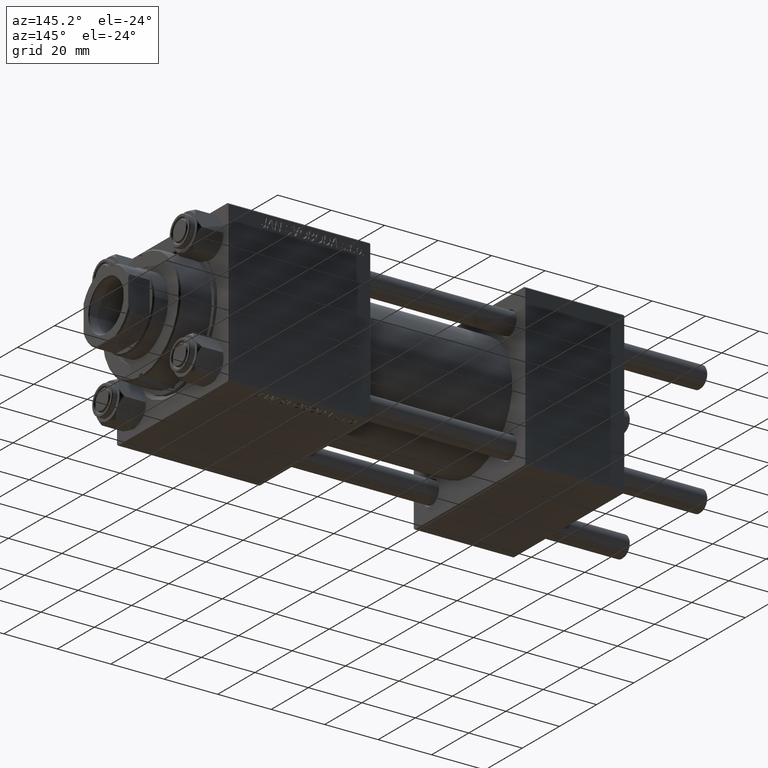
[diagram: clean part render]
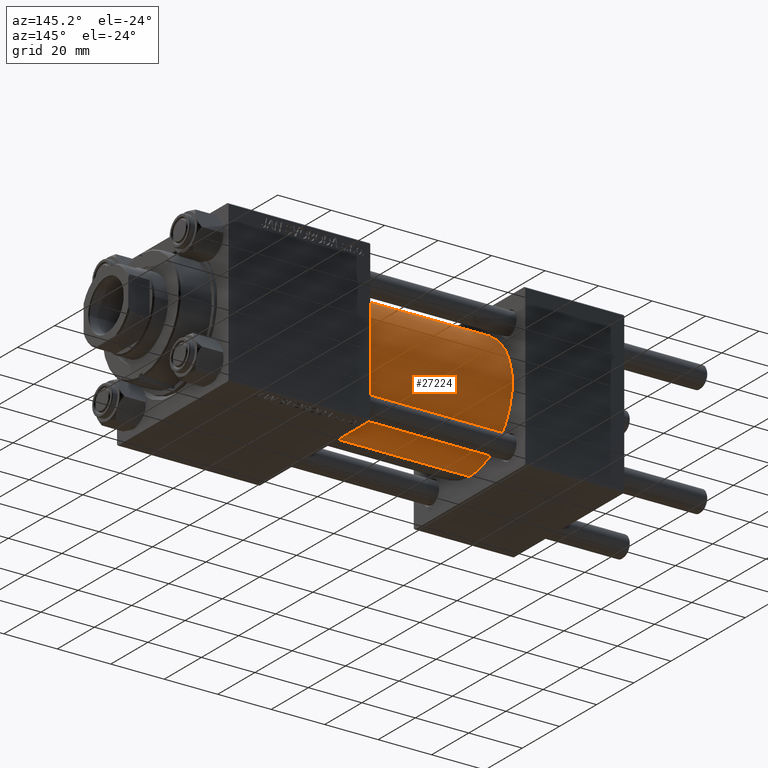
[diagram: same view with one face highlighted and labeled with its STEP entity id]
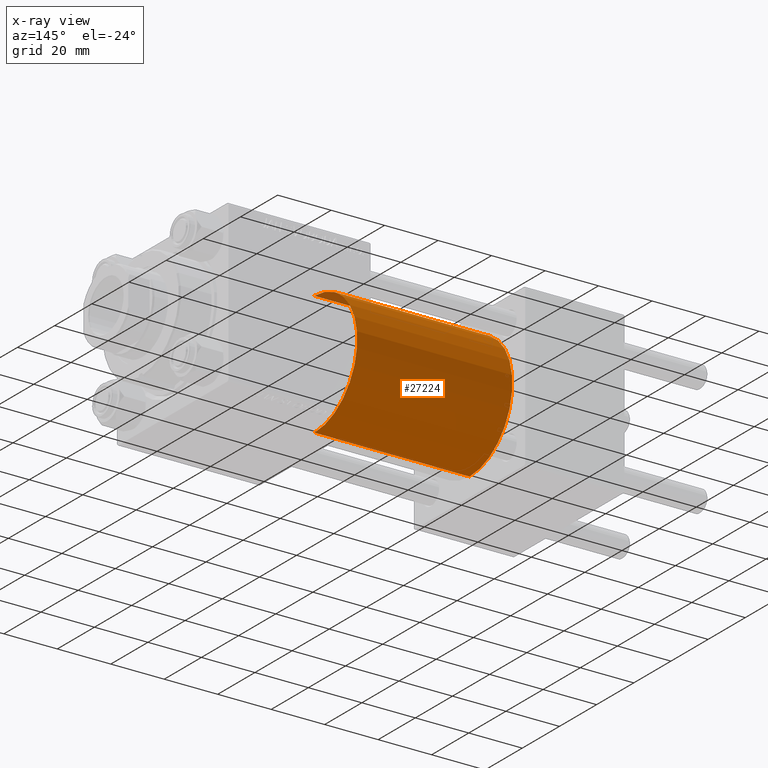
[diagram: x-ray of the same camera — body ghosted, the highlighted face saturated]
A machine part, auxiliary view. The second image highlights one B-rep face of the part: STEP entity #27224.
The next image is the same camera in x-ray: the body ghosted, the highlighted face saturated — about 1% of this face is hidden behind the body in this view.
In plain terms, the highlighted cylindrical surface (partial cylindrical patch) has radius 23 mm, axis along (-1, -0, -0).
Its self-contained STEP definition (entity closure, byte-faithful):
#1050 = LINE ( 'NONE', #4615, #10610 ) ;
#2113 = AXIS2_PLACEMENT_3D ( 'NONE', #49822, #15140, #30586 ) ;
#3575 = VERTEX_POINT ( 'NONE', #37879 ) ;
#4615 = CARTESIAN_POINT ( 'NONE',  ( 95.00000000000000000, 0.000000000000000000, 23.00000000000000000 ) ) ;
#6054 = CARTESIAN_POINT ( 'NONE',  ( 95.00000000000000000, 0.000000000000000000, 0.000000000000000000 ) ) ;
#6319 = DIRECTION ( 'NONE',  ( 0.000000000000000000, 0.000000000000000000, 1.000000000000000000 ) ) ;
#6379 = ORIENTED_EDGE ( 'NONE', *, *, #25869, .F. ) ;
#7815 = CIRCLE ( 'NONE', #2113, 23.00000000000000000 ) ;
#10007 = CARTESIAN_POINT ( 'NONE',  ( 37.00000000000000000, 2.816687638038911957E-15, -23.00000000000000000 ) ) ;
#10258 = CARTESIAN_POINT ( 'NONE',  ( 37.00000000000000000, 0.000000000000000000, 23.00000000000000000 ) ) ;
#10610 = VECTOR ( 'NONE', #24373, 1000.000000000000000 ) ;
#12792 = DIRECTION ( 'NONE',  ( -1.000000000000000000, -0.000000000000000000, -0.000000000000000000 ) ) ;
#13543 = CARTESIAN_POINT ( 'NONE',  ( 95.00000000000000000, 2.816687638038911957E-15, -23.00000000000000000 ) ) ;
#15140 = DIRECTION ( 'NONE',  ( 1.000000000000000000, 0.000000000000000000, 0.000000000000000000 ) ) ;
#15770 = ORIENTED_EDGE ( 'NONE', *, *, #43377, .F. ) ;
#21147 = CIRCLE ( 'NONE', #35733, 23.00000000000000000 ) ;
#21947 = AXIS2_PLACEMENT_3D ( 'NONE', #6054, #25571, #6319 ) ;
#23611 = EDGE_LOOP ( 'NONE', ( #15770, #26425, #44780, #6379 ) ) ;
#24373 = DIRECTION ( 'NONE',  ( -1.000000000000000000, -0.000000000000000000, -0.000000000000000000 ) ) ;
#24935 = LINE ( 'NONE', #13543, #31651 ) ;
#25571 = DIRECTION ( 'NONE',  ( -1.000000000000000000, -0.000000000000000000, -0.000000000000000000 ) ) ;
#25869 = EDGE_CURVE ( 'NONE', #3575, #40997, #1050, .T. ) ;
#26425 = ORIENTED_EDGE ( 'NONE', *, *, #26452, .T. ) ;
#26452 = EDGE_CURVE ( 'NONE', #29736, #33920, #24935, .T. ) ;
#27224 = ADVANCED_FACE ( 'NONE', ( #33931 ), #41266, .T. ) ;
#27289 = EDGE_CURVE ( 'NONE', #33920, #40997, #21147, .T. ) ;
#29736 = VERTEX_POINT ( 'NONE', #40966 ) ;
#30586 = DIRECTION ( 'NONE',  ( 0.000000000000000000, 0.000000000000000000, -1.000000000000000000 ) ) ;
#31651 = VECTOR ( 'NONE', #12792, 1000.000000000000000 ) ;
#33182 = CARTESIAN_POINT ( 'NONE',  ( 37.00000000000000000, 0.000000000000000000, 0.000000000000000000 ) ) ;
#33920 = VERTEX_POINT ( 'NONE', #10007 ) ;
#33931 = FACE_OUTER_BOUND ( 'NONE', #23611, .T. ) ;
#35733 = AXIS2_PLACEMENT_3D ( 'NONE', #33182, #48859, #48607 ) ;
#37879 = CARTESIAN_POINT ( 'NONE',  ( 95.00000000000000000, 0.000000000000000000, 23.00000000000000000 ) ) ;
#40966 = CARTESIAN_POINT ( 'NONE',  ( 95.00000000000000000, 2.816687638038911957E-15, -23.00000000000000000 ) ) ;
#40997 = VERTEX_POINT ( 'NONE', #10258 ) ;
#41266 = CYLINDRICAL_SURFACE ( 'NONE', #21947, 23.00000000000000000 ) ;
#43377 = EDGE_CURVE ( 'NONE', #29736, #3575, #7815, .T. ) ;
#44780 = ORIENTED_EDGE ( 'NONE', *, *, #27289, .T. ) ;
#48607 = DIRECTION ( 'NONE',  ( 0.000000000000000000, 0.000000000000000000, 1.000000000000000000 ) ) ;
#48859 = DIRECTION ( 'NONE',  ( 1.000000000000000000, -0.000000000000000000, 0.000000000000000000 ) ) ;
#49822 = CARTESIAN_POINT ( 'NONE',  ( 95.00000000000000000, 0.000000000000000000, 0.000000000000000000 ) ) ;